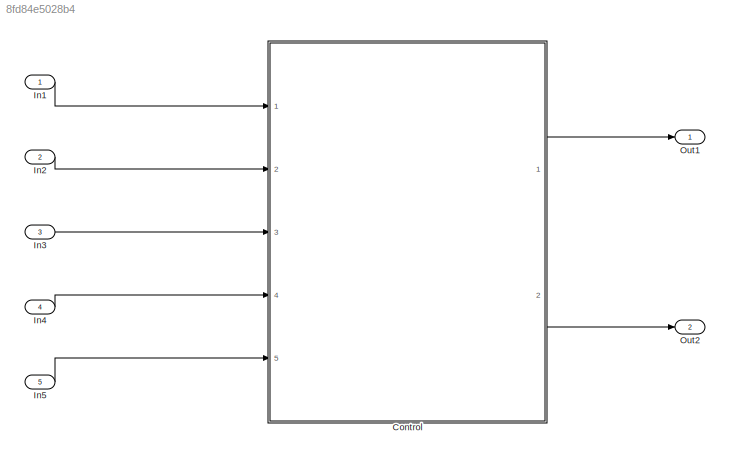
MODEL slx_8fd84e5028b4
KIND model
CONFIG AbsTol = auto
CONFIG EnableMultiTasking = off
CONFIG FixedStep = auto
CONFIG MaxStep = auto
CONFIG MinStep = auto
CONFIG RelTol = 1e-3
CONFIG SampleTimeConstraint = Unconstrained
CONFIG SolverName = VariableStepAuto
CONFIG StartTime = 0.0
CONFIG StopTime = 10.0
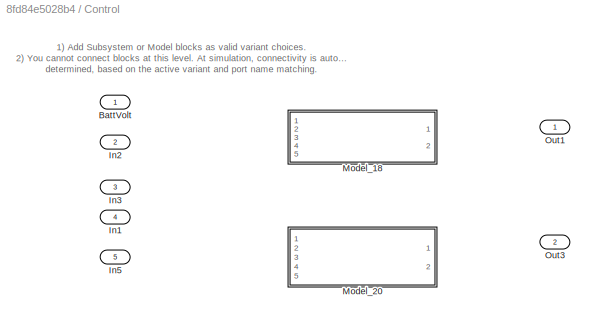
BLOCK [SubSystem] Control
  Ports = [5, 2]
  RequestExecContextInheritance = off
  Variant = on
BLOCK [Inport] Control/BattVolt
BLOCK [Inport] Control/In1
  Port = 4
BLOCK [Inport] Control/In2
  Port = 2
BLOCK [Inport] Control/In3
  Port = 3
BLOCK [Inport] Control/In5
  Port = 5
BLOCK [ModelReference] Control/Model_18
  DisableCoverage = on
  ModelNameDialog = thrid_1.slx
  ModelReferenceVersion = 1.8
  Ports = [5, 2]
  VariantControl = K == 1
BLOCK [ModelReference] Control/Model_20
  ModelNameDialog = fourth_1
  ModelReferenceVersion = 1.9
  Ports = [5, 2]
  VariantControl = K == 2
BLOCK [Outport] Control/Out1
BLOCK [Outport] Control/Out3
  Port = 2
BLOCK [Inport] In1
BLOCK [Inport] In2
  Port = 2
BLOCK [Inport] In3
  Port = 3
BLOCK [Inport] In4
  Port = 4
BLOCK [Inport] In5
  Port = 5
BLOCK [Outport] Out1
BLOCK [Outport] Out2
  Port = 2
ANNOTATION Control: 1) Add Subsystem or Model blocks as valid variant choices. 2) You cannot connect blocks at this level. At simulation, connectivity is automatically determined, based on the active variant and port name matching.
LINE Control:1 -> Out1:1
LINE Control:2 -> Out2:1
LINE In1:1 -> Control:1
LINE In2:1 -> Control:2
LINE In3:1 -> Control:3
LINE In4:1 -> Control:4
LINE In5:1 -> Control:5
